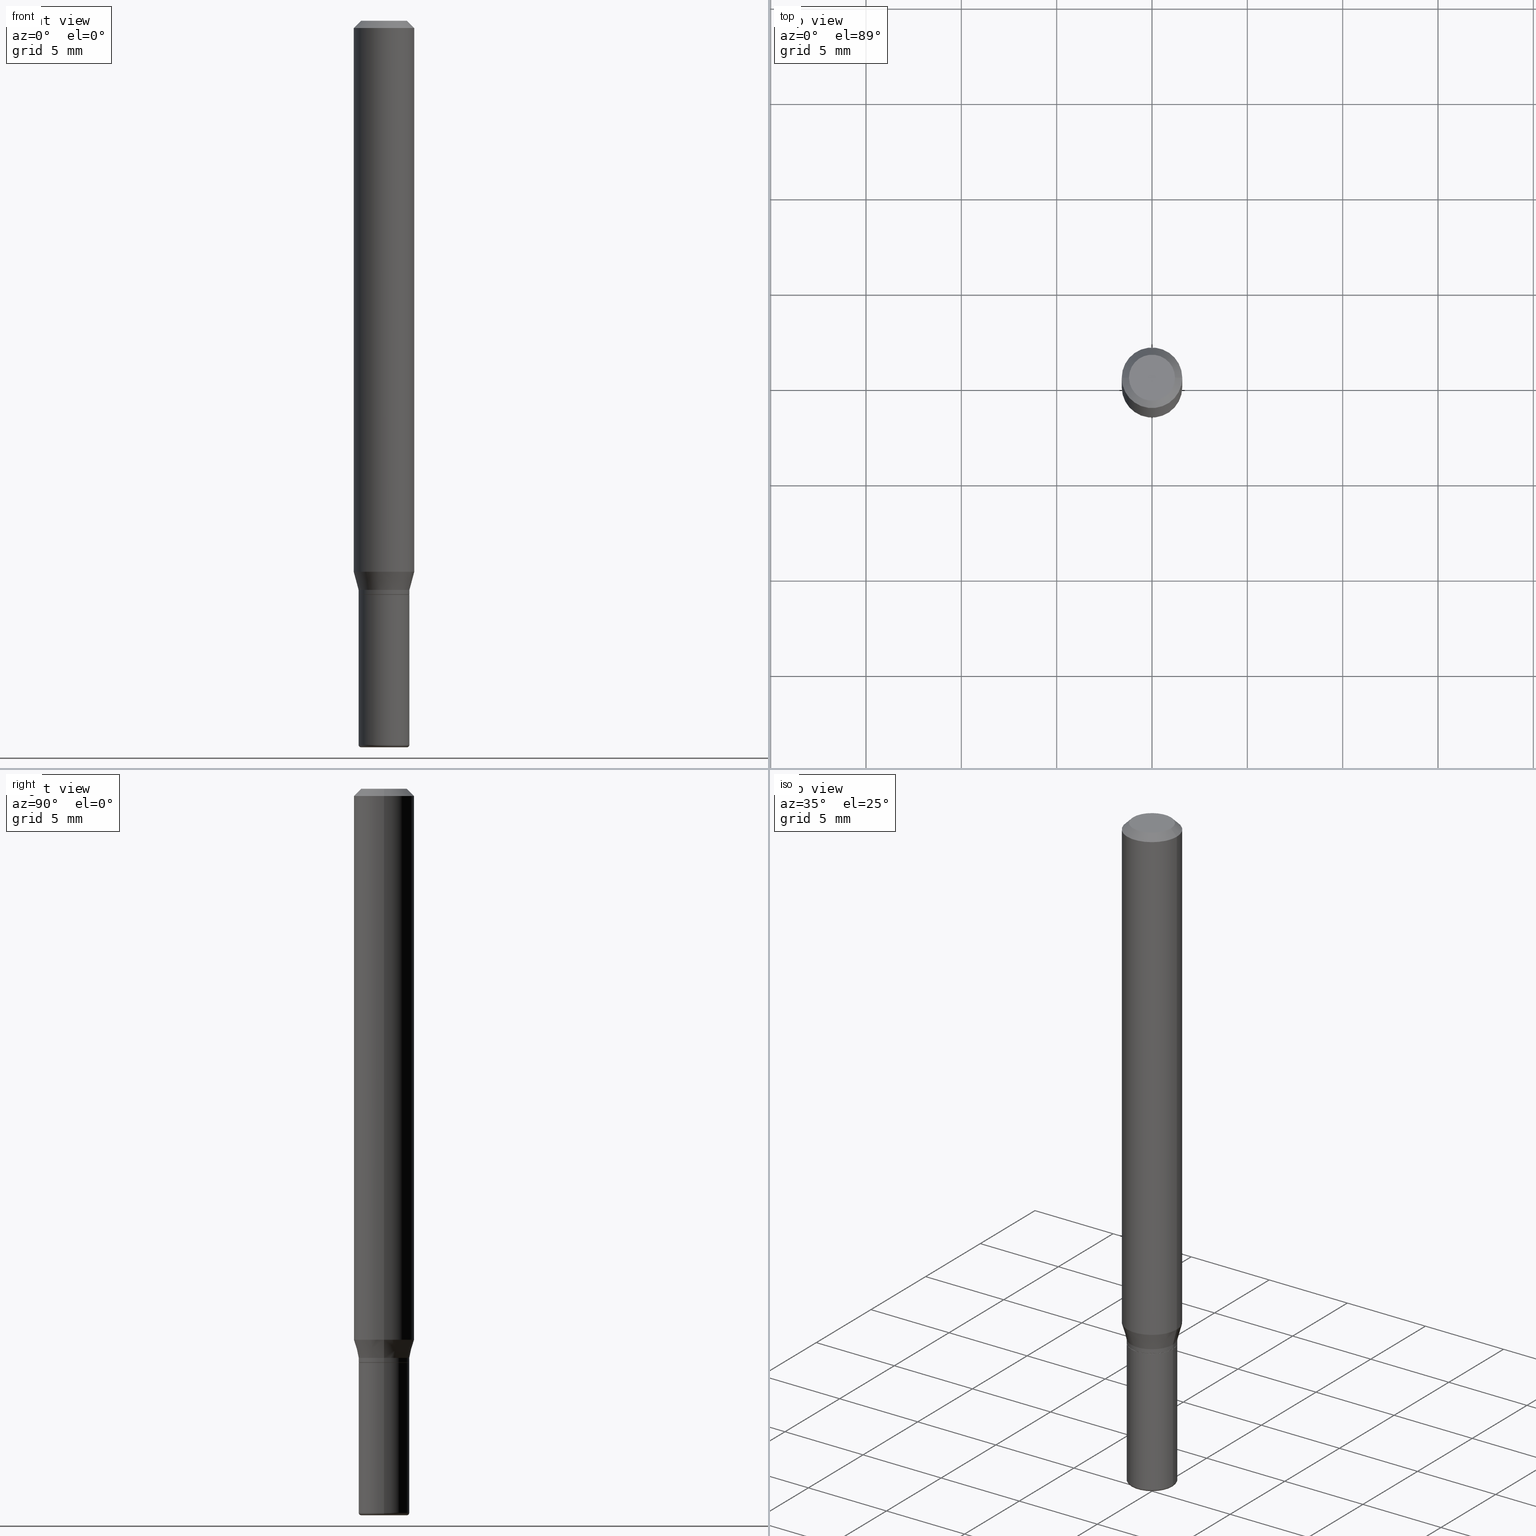
[diagram: canonical four-view strip — front | top / right | iso, engineering-drawing reading convention]
A machine part, canonical four-view strip (front | top / right | iso — engineering-drawing reading convention). The complete STEP part file that produces these views, byte-faithful:
ISO-10303-21;
HEADER;
FILE_DESCRIPTION (( 'STEP AP203' ),
    '1' );
FILE_NAME ('09227.STEP',
    '2024-02-29T23:40:52',
    ( '' ),
    ( '' ),
    'SwSTEP 2.0',
    'SolidWorks 2023',
    '' );
FILE_SCHEMA (( 'CONFIG_CONTROL_DESIGN' ));
ENDSEC;

DATA;
#1 = LOCAL_TIME ( 18, 40, 52.00000000000000000, #343 ) ;
#2 = EDGE_LOOP ( 'NONE', ( #430, #240, #84, #311 ) ) ;
#3 = VERTEX_POINT ( 'NONE', #241 ) ;
#4 = CARTESIAN_POINT ( 'NONE',  ( 0.04749999999999999362, -5.551455328760600652E-15, -1.495000000000000107 ) ) ;
#5 = ADVANCED_FACE ( 'NONE', ( #357 ), #208, .T. ) ;
#6 = EDGE_CURVE ( 'NONE', #164, #42, #386, .T. ) ;
#7 = DIRECTION ( 'NONE',  ( -6.982962677686266711E-15, -1.000000000000000000, 3.491481338843145583E-15 ) ) ;
#8 = AXIS2_PLACEMENT_3D ( 'NONE', #128, #331, #440 ) ;
#9 = AXIS2_PLACEMENT_3D ( 'NONE', #509, #155, #270 ) ;
#10 = DIRECTION ( 'NONE',  ( 0.2588190451025205729, 1.565188264969628081E-15, 0.9659258262890684232 ) ) ;
#11 = CARTESIAN_POINT ( 'NONE',  ( 3.655975865246779122E-29, -5.219764601570503141E-15, -1.495000000000000107 ) ) ;
#12 = DIRECTION ( 'NONE',  ( 1.000000000000000000, -6.982962677686266711E-15, 0.000000000000000000 ) ) ;
#13 = ORIENTED_EDGE ( 'NONE', *, *, #512, .T. ) ;
#14 = DIRECTION ( 'NONE',  ( -2.445468806185136597E-29, 3.491481338843145583E-15, 1.000000000000000000 ) ) ;
#15 = DIRECTION ( 'NONE',  ( -2.445468806185136877E-29, 3.491481338843145188E-15, 1.000000000000000000 ) ) ;
#16 = ORIENTED_EDGE ( 'NONE', *, *, #314, .T. ) ;
#17 = ADVANCED_FACE ( 'NONE', ( #477 ), #242, .F. ) ;
#18 = DIRECTION ( 'NONE',  ( -2.445468806185136877E-29, 3.491481338843145188E-15, 1.000000000000000000 ) ) ;
#19 = DIRECTION ( 'NONE',  ( 1.000000000000000000, -6.982962677686258822E-15, 0.000000000000000000 ) ) ;
#20 = AXIS2_PLACEMENT_3D ( 'NONE', #211, #367, #448 ) ;
#21 = DIRECTION ( 'NONE',  ( -2.445468806185136597E-29, 3.491481338843145583E-15, 1.000000000000000000 ) ) ;
#22 = FACE_OUTER_BOUND ( 'NONE', #199, .T. ) ;
#23 = CC_DESIGN_APPROVAL ( #151, ( #272 ) ) ;
#24 = ORIENTED_EDGE ( 'NONE', *, *, #512, .F. ) ;
#25 = FACE_OUTER_BOUND ( 'NONE', #256, .T. ) ;
#26 = FACE_OUTER_BOUND ( 'NONE', #471, .T. ) ;
#27 = EDGE_CURVE ( 'NONE', #127, #3, #114, .T. ) ;
#28 = APPROVAL_DATE_TIME ( #225, #186 ) ;
#29 = DIRECTION ( 'NONE',  ( 1.000000000000000000, -6.982962677686263555E-15, 0.000000000000000000 ) ) ;
#30 = PERSON_AND_ORGANIZATION ( #154, #291 ) ;
#31 = CIRCLE ( 'NONE', #235, 0.06250000000000000000 ) ;
#32 = PERSON_AND_ORGANIZATION ( #154, #291 ) ;
#33 = CALENDAR_DATE ( 2024, 29, 2 ) ;
#34 = AXIS2_PLACEMENT_3D ( 'NONE', #250, #216, #174 ) ;
#35 = AXIS2_PLACEMENT_3D ( 'NONE', #421, #150, #263 ) ;
#36 = CARTESIAN_POINT ( 'NONE',  ( 0.06250000000000000000, -4.364351673553916694E-16, 3.047610484872459871E-30 ) ) ;
#37 = CARTESIAN_POINT ( 'NONE',  ( 0.05200000000000008782, -4.500519445768814483E-15, -1.185000000000000053 ) ) ;
#38 = FACE_OUTER_BOUND ( 'NONE', #238, .T. ) ;
#39 = ORIENTED_EDGE ( 'NONE', *, *, #198, .T. ) ;
#40 = DIRECTION ( 'NONE',  ( -1.000000000000000000, 6.982962677686265922E-15, -4.876176775795935793E-29 ) ) ;
#41 = ORIENTED_EDGE ( 'NONE', *, *, #6, .T. ) ;
#42 = VERTEX_POINT ( 'NONE', #236 ) ;
#43 = VECTOR ( 'NONE', #222, 39.37007874015748143 ) ;
#44 = PRODUCT_DEFINITION_FORMATION_WITH_SPECIFIED_SOURCE ( 'ANY', '', #230, .NOT_KNOWN. ) ;
#45 = APPLICATION_CONTEXT ( 'configuration controlled 3d designs of mechanical parts and assemblies' ) ;
#46 = ORIENTED_EDGE ( 'NONE', *, *, #333, .F. ) ;
#47 = EDGE_CURVE ( 'NONE', #286, #124, #395, .T. ) ;
#48 = ADVANCED_BREP_SHAPE_REPRESENTATION ( '09227', ( #107, #96, #35 ), #259 ) ;
#49 = VERTEX_POINT ( 'NONE', #369 ) ;
#50 = CIRCLE ( 'NONE', #327, 0.005000000000000177046 ) ;
#51 = CARTESIAN_POINT ( 'NONE',  ( 0.06250000000000000000, -4.811533449433669144E-16, -0.01499999999999970281 ) ) ;
#52 = CARTESIAN_POINT ( 'NONE',  ( 0.05200000000000008782, -4.500519445768814483E-15, -1.185000000000000053 ) ) ;
#53 = DIRECTION ( 'NONE',  ( 1.000000000000000000, -6.982962677686263555E-15, 4.883557194083111780E-29 ) ) ;
#54 = CARTESIAN_POINT ( 'NONE',  ( 0.000000000000000000, 0.000000000000000000, 0.000000000000000000 ) ) ;
#55 = CARTESIAN_POINT ( 'NONE',  ( 0.04749999999999998668, -5.568912735454817265E-15, -1.500000000000000444 ) ) ;
#56 =( NAMED_UNIT ( * ) SI_UNIT ( $, .STERADIAN. ) SOLID_ANGLE_UNIT ( ) );
#57 = DIRECTION ( 'NONE',  ( -0.2588190451025205729, 5.211531920934545520E-15, 0.9659258262890684232 ) ) ;
#58 = DIRECTION ( 'NONE',  ( -1.000000000000000000, 7.105427357601061812E-15, 0.000000000000000000 ) ) ;
#59 = AXIS2_PLACEMENT_3D ( 'NONE', #481, #126, #244 ) ;
#60 = FACE_OUTER_BOUND ( 'NONE', #123, .T. ) ;
#61 = DIRECTION ( 'NONE',  ( 1.000000000000000000, -6.982962677686266711E-15, 4.876176775795936353E-29 ) ) ;
#62 = VERTEX_POINT ( 'NONE', #490 ) ;
#63 = ORIENTED_EDGE ( 'NONE', *, *, #467, .F. ) ;
#64 = CC_DESIGN_DATE_AND_TIME_ASSIGNMENT ( #153, #110, ( #354 ) ) ;
#65 = ORIENTED_EDGE ( 'NONE', *, *, #261, .F. ) ;
#66 = DIRECTION ( 'NONE',  ( -2.445468806185136597E-29, 3.491481338843145583E-15, 1.000000000000000000 ) ) ;
#67 = MECHANICAL_CONTEXT ( 'NONE', #392, 'mechanical' ) ;
#68 = VERTEX_POINT ( 'NONE', #134 ) ;
#69 = APPLICATION_PROTOCOL_DEFINITION ( 'international standard', 'config_control_design', 1994, #392 ) ;
#70 = ADVANCED_FACE ( 'NONE', ( #287 ), #400, .T. ) ;
#71 = CONICAL_SURFACE ( 'NONE', #353, 0.05200000000000008782, 0.7853981633975507526 ) ;
#72 = CARTESIAN_POINT ( 'NONE',  ( 2.897880535329386822E-29, -4.137405386529127541E-15, -1.185000000000000053 ) ) ;
#73 = APPROVAL_ROLE ( '' ) ;
#74 = DATE_TIME_ROLE ( 'creation_date' ) ;
#75 = DIRECTION ( 'NONE',  ( -0.7071067811865479058, 2.468850131082261005E-15, -0.7071067811865471286 ) ) ;
#76 = CARTESIAN_POINT ( 'NONE',  ( 0.05250000000000007438, -4.469096113719226630E-15, -1.175000000000000488 ) ) ;
#77 = AXIS2_PLACEMENT_3D ( 'NONE', #441, #407, #12 ) ;
#78 = EDGE_LOOP ( 'NONE', ( #117, #204, #209, #470 ) ) ;
#79 = ORIENTED_EDGE ( 'NONE', *, *, #143, .T. ) ;
#80 = DIRECTION ( 'NONE',  ( 1.000000000000000000, -6.982962677686274599E-15, 0.000000000000000000 ) ) ;
#81 = EDGE_LOOP ( 'NONE', ( #474, #197, #41, #63 ) ) ;
#82 = ORIENTED_EDGE ( 'NONE', *, *, #148, .T. ) ;
#83 = EDGE_CURVE ( 'NONE', #286, #62, #462, .T. ) ;
#84 = ORIENTED_EDGE ( 'NONE', *, *, #449, .T. ) ;
#85 = CARTESIAN_POINT ( 'NONE',  ( 3.668203209277632395E-31, -5.237222008264614861E-17, -0.01499999999999970281 ) ) ;
#86 = EDGE_CURVE ( 'NONE', #42, #352, #371, .T. ) ;
#87 = CARTESIAN_POINT ( 'NONE',  ( 2.896657800926294581E-29, -4.135659645859706826E-15, -1.184500000000000108 ) ) ;
#88 = DIRECTION ( 'NONE',  ( -2.445468806185136597E-29, 3.491481338843145583E-15, 1.000000000000000000 ) ) ;
#89 = EDGE_LOOP ( 'NONE', ( #432, #16, #277, #398 ) ) ;
#90 = CONICAL_SURFACE ( 'NONE', #463, 0.05250000000000007438, 0.2617993877991492413 ) ;
#91 = APPROVAL_PERSON_ORGANIZATION ( #152, #151, #111 ) ;
#92 = DIRECTION ( 'NONE',  ( -0.7071067811866199593, 7.493145998870616062E-15, 0.7071067811864750752 ) ) ;
#93 = CARTESIAN_POINT ( 'NONE',  ( 0.05250000000000008826, -3.666055405785296038E-16, 2.559992807292870916E-30 ) ) ;
#94 = ORIENTED_EDGE ( 'NONE', *, *, #148, .F. ) ;
#95 = CARTESIAN_POINT ( 'NONE',  ( 2.896657800926294581E-29, -4.135659645859706826E-15, -1.184500000000000108 ) ) ;
#96 = MANIFOLD_SOLID_BREP ( 'Body-Move/Copy2[2]', #303 ) ;
#97 = DIRECTION ( 'NONE',  ( 1.000000000000000000, -6.982962677686258033E-15, 0.000000000000000000 ) ) ;
#98 = DIRECTION ( 'NONE',  ( 0.7071067811865479058, -7.319954787623257623E-15, -0.7071067811865471286 ) ) ;
#99 = CC_DESIGN_PERSON_AND_ORGANIZATION_ASSIGNMENT ( #30, #269, ( #230 ) ) ;
#100 = LINE ( 'NONE', #332, #443 ) ;
#101 = CIRCLE ( 'NONE', #393, 0.04750000000000000749 ) ;
#102 = TOROIDAL_SURFACE ( 'NONE', #137, 0.04749999999999999362, 0.005000000000000177046 ) ;
#103 = UNCERTAINTY_MEASURE_WITH_UNIT (LENGTH_MEASURE( 1.000000000000000082E-05 ), #254, 'distance_accuracy_value', 'NONE');
#104 = CARTESIAN_POINT ( 'NONE',  ( 2.897880535329386822E-29, -4.137405386529127541E-15, -1.185000000000000053 ) ) ;
#105 = COORDINATED_UNIVERSAL_TIME_OFFSET ( 5, 0, .BEHIND. ) ;
#106 = CC_DESIGN_PERSON_AND_ORGANIZATION_ASSIGNMENT ( #300, #460, ( #354 ) ) ;
#107 = MANIFOLD_SOLID_BREP ( 'Body-Move/Copy2[1]', #136 ) ;
#108 = DATE_AND_TIME ( #33, #169 ) ;
#109 = DIRECTION ( 'NONE',  ( 7.105427357601001859E-15, 1.000000000000000000, -3.491481338843145583E-15 ) ) ;
#110 = DATE_TIME_ROLE ( 'classification_date' ) ;
#111 = APPROVAL_ROLE ( '' ) ;
#112 = CARTESIAN_POINT ( 'NONE',  ( 0.04750000000000000749, -4.035134999187568762E-16, 2.731847993664288856E-16 ) ) ;
#113 = CARTESIAN_POINT ( 'NONE',  ( -0.06250000000000000000, -3.528097505788223835E-15, -1.137679491924311836 ) ) ;
#114 = LINE ( 'NONE', #427, #505 ) ;
#115 = CARTESIAN_POINT ( 'NONE',  ( -0.05250000000000007438, -3.729455636866644935E-15, -1.175000000000000488 ) ) ;
#116 = AXIS2_PLACEMENT_3D ( 'NONE', #285, #406, #144 ) ;
#117 = ORIENTED_EDGE ( 'NONE', *, *, #198, .F. ) ;
#118 = AXIS2_PLACEMENT_3D ( 'NONE', #206, #66, #388 ) ;
#119 = ORIENTED_EDGE ( 'NONE', *, *, #348, .T. ) ;
#120 = ORIENTED_EDGE ( 'NONE', *, *, #307, .T. ) ;
#121 = CARTESIAN_POINT ( 'NONE',  ( -6.680649051745406845E-45, 9.538196290434862081E-31, 2.731847993664263218E-16 ) ) ;
#122 = ORIENTED_EDGE ( 'NONE', *, *, #482, .F. ) ;
#123 = EDGE_LOOP ( 'NONE', ( #24, #351, #397, #321 ) ) ;
#124 = VERTEX_POINT ( 'NONE', #414 ) ;
#125 = VECTOR ( 'NONE', #160, 39.37007874015748143 ) ;
#126 = DIRECTION ( 'NONE',  ( -2.445468806185136597E-29, 3.491481338843145583E-15, 1.000000000000000000 ) ) ;
#127 = VERTEX_POINT ( 'NONE', #284 ) ;
#128 = CARTESIAN_POINT ( 'NONE',  ( 3.668203209277706016E-29, -5.237222008264719754E-15, -1.500000000000000444 ) ) ;
#129 = LENGTH_MEASURE_WITH_UNIT ( LENGTH_MEASURE( 0.02539999999999999897 ), #145 );
#130 = ORIENTED_EDGE ( 'NONE', *, *, #465, .T. ) ;
#131 = EDGE_CURVE ( 'NONE', #124, #309, #279, .T. ) ;
#132 = EDGE_CURVE ( 'NONE', #62, #309, #361, .T. ) ;
#133 = CARTESIAN_POINT ( 'NONE',  ( 2.873425847267536398E-29, -4.102490573140697470E-15, -1.175000000000000488 ) ) ;
#134 = CARTESIAN_POINT ( 'NONE',  ( -0.05250000000000007438, -3.628776571327434780E-15, -1.175000000000000488 ) ) ;
#135 = ORIENTED_EDGE ( 'NONE', *, *, #334, .T. ) ;
#136 = CLOSED_SHELL ( 'NONE', ( #193, #475, #426, #431, #508, #390 ) ) ;
#137 = AXIS2_PLACEMENT_3D ( 'NONE', #416, #320, #288 ) ;
#138 = DIRECTION ( 'NONE',  ( 1.000000000000000000, -6.982962677686265133E-15, 0.000000000000000000 ) ) ;
#139 = DIRECTION ( 'NONE',  ( 1.000000000000000000, -6.982962677686266711E-15, 4.876176775795935793E-29 ) ) ;
#140 = EDGE_LOOP ( 'NONE', ( #65, #39, #447, #172 ) ) ;
#141 = DIRECTION ( 'NONE',  ( 2.438088387897960049E-29, -3.491481338843145188E-15, -1.000000000000000000 ) ) ;
#142 = DIRECTION ( 'NONE',  ( -2.445468806185136597E-29, 3.491481338843145583E-15, 1.000000000000000000 ) ) ;
#143 = EDGE_CURVE ( 'NONE', #409, #310, #315, .T. ) ;
#144 = DIRECTION ( 'NONE',  ( 1.000000000000000000, -6.982962677686274599E-15, 0.000000000000000000 ) ) ;
#145 =( LENGTH_UNIT ( ) NAMED_UNIT ( * ) SI_UNIT ( $, .METRE. ) );
#146 = ORIENTED_EDGE ( 'NONE', *, *, #333, .T. ) ;
#147 = ORIENTED_EDGE ( 'NONE', *, *, #334, .F. ) ;
#148 = EDGE_CURVE ( 'NONE', #309, #124, #405, .T. ) ;
#149 = DIRECTION ( 'NONE',  ( -2.438088387897960049E-29, 3.491481338843145188E-15, 1.000000000000000000 ) ) ;
#150 = DIRECTION ( 'NONE',  ( 0.000000000000000000, 0.000000000000000000, 1.000000000000000000 ) ) ;
#151 = APPROVAL ( #510, 'UNSPECIFIED' ) ;
#152 = PERSON_AND_ORGANIZATION ( #154, #291 ) ;
#153 = DATE_AND_TIME ( #422, #1 ) ;
#154 = PERSON ( 'UNSPECIFIED', 'UNSPECIFIED', 'UNSPECIFIED', ('UNSPECIFIED'), ('UNSPECIFIED'), ('UNSPECIFIED') ) ;
#155 = DIRECTION ( 'NONE',  ( -2.445468806185136597E-29, 3.491481338843145583E-15, 1.000000000000000000 ) ) ;
#156 = DIRECTION ( 'NONE',  ( 1.000000000000000000, -6.982962677686266711E-15, 4.852736867747365086E-29 ) ) ;
#157 = EDGE_CURVE ( 'NONE', #127, #358, #101, .T. ) ;
#158 = CC_DESIGN_DATE_AND_TIME_ASSIGNMENT ( #380, #74, ( #272 ) ) ;
#159 = CARTESIAN_POINT ( 'NONE',  ( 0.05250000000000008132, -3.666055405785295545E-16, 2.559992807292870215E-30 ) ) ;
#160 = DIRECTION ( 'NONE',  ( -2.445468806185136877E-29, 3.491481338843145188E-15, 1.000000000000000000 ) ) ;
#161 = ORIENTED_EDGE ( 'NONE', *, *, #465, .F. ) ;
#162 = AXIS2_PLACEMENT_3D ( 'NONE', #366, #362, #19 ) ;
#163 = EDGE_CURVE ( 'NONE', #306, #164, #167, .T. ) ;
#164 = VERTEX_POINT ( 'NONE', #55 ) ;
#165 = ORIENTED_EDGE ( 'NONE', *, *, #374, .T. ) ;
#166 = DIRECTION ( 'NONE',  ( -2.438088387897960049E-29, 3.491481338843145188E-15, 1.000000000000000000 ) ) ;
#167 = CIRCLE ( 'NONE', #8, 0.04749999999999998668 ) ;
#168 = VECTOR ( 'NONE', #98, 39.37007874015748143 ) ;
#169 = LOCAL_TIME ( 18, 40, 52.00000000000000000, #105 ) ;
#170 =( NAMED_UNIT ( * ) PLANE_ANGLE_UNIT ( ) SI_UNIT ( $, .RADIAN. ) );
#171 = CC_DESIGN_PERSON_AND_ORGANIZATION_ASSIGNMENT ( #389, #302, ( #272 ) ) ;
#172 = ORIENTED_EDGE ( 'NONE', *, *, #27, .F. ) ;
#173 = CARTESIAN_POINT ( 'NONE',  ( 3.655975865246779122E-29, -5.219764601570503141E-15, -1.495000000000000107 ) ) ;
#174 = DIRECTION ( 'NONE',  ( 1.000000000000000000, -6.982962677686263555E-15, 0.000000000000000000 ) ) ;
#175 = CARTESIAN_POINT ( 'NONE',  ( 2.897880535329386822E-29, -4.137405386529127541E-15, -1.185000000000000053 ) ) ;
#176 = AXIS2_PLACEMENT_3D ( 'NONE', #85, #444, #500 ) ;
#177 = CC_DESIGN_PERSON_AND_ORGANIZATION_ASSIGNMENT ( #341, #384, ( #44 ) ) ;
#178 = APPROVAL_PERSON_ORGANIZATION ( #32, #186, #189 ) ;
#179 = DIRECTION ( 'NONE',  ( 1.000000000000000000, -6.982962677686266711E-15, 4.852736867747365086E-29 ) ) ;
#180 = CYLINDRICAL_SURFACE ( 'NONE', #308, 0.05250000000000008826 ) ;
#181 = ORIENTED_EDGE ( 'NONE', *, *, #234, .F. ) ;
#182 = FACE_OUTER_BOUND ( 'NONE', #297, .T. ) ;
#183 = DIRECTION ( 'NONE',  ( -2.445468806185136597E-29, 3.491481338843145583E-15, 1.000000000000000000 ) ) ;
#184 = EDGE_LOOP ( 'NONE', ( #146, #476, #296, #515 ) ) ;
#185 = APPROVAL_STATUS ( 'not_yet_approved' ) ;
#186 = APPROVAL ( #262, 'UNSPECIFIED' ) ;
#187 = DIRECTION ( 'NONE',  ( -2.445468806185136877E-29, 3.491481338843145188E-15, 1.000000000000000000 ) ) ;
#188 = CIRCLE ( 'NONE', #200, 0.05250000000000007438 ) ;
#189 = APPROVAL_ROLE ( '' ) ;
#190 = FACE_OUTER_BOUND ( 'NONE', #339, .T. ) ;
#191 = COORDINATED_UNIVERSAL_TIME_OFFSET ( 5, 0, .BEHIND. ) ;
#192 = CALENDAR_DATE ( 2024, 29, 2 ) ;
#193 = ADVANCED_FACE ( 'NONE', ( #365 ), #473, .T. ) ;
#194 = CIRCLE ( 'NONE', #479, 0.05200000000000008782 ) ;
#195 = DIRECTION ( 'NONE',  ( -2.445468806185136597E-29, 3.491481338843145583E-15, 1.000000000000000000 ) ) ;
#196 = DIRECTION ( 'NONE',  ( 0.7071067811866199593, -2.468850131083015945E-15, 0.7071067811864750752 ) ) ;
#197 = ORIENTED_EDGE ( 'NONE', *, *, #163, .T. ) ;
#198 = EDGE_CURVE ( 'NONE', #358, #381, #249, .T. ) ;
#199 = EDGE_LOOP ( 'NONE', ( #377, #502, #122, #488 ) ) ;
#200 = AXIS2_PLACEMENT_3D ( 'NONE', #252, #195, #457 ) ;
#201 = DIRECTION ( 'NONE',  ( -2.445468806185136597E-29, 3.491481338843145583E-15, 1.000000000000000000 ) ) ;
#202 = DIRECTION ( 'NONE',  ( -1.000000000000000000, 6.982962677686266711E-15, 0.000000000000000000 ) ) ;
#203 = CARTESIAN_POINT ( 'NONE',  ( -0.04749999999999998668, -4.873221937037561039E-15, -1.500000000000000444 ) ) ;
#204 = ORIENTED_EDGE ( 'NONE', *, *, #157, .F. ) ;
#205 = EDGE_CURVE ( 'NONE', #352, #409, #215, .T. ) ;
#206 = CARTESIAN_POINT ( 'NONE',  ( 2.782159708937459794E-29, -3.972186715638285663E-15, -1.137679491924311836 ) ) ;
#207 = LINE ( 'NONE', #93, #401 ) ;
#208 = CONICAL_SURFACE ( 'NONE', #478, 0.06250000000000000000, 0.7853981633974488341 ) ;
#209 = ORIENTED_EDGE ( 'NONE', *, *, #27, .T. ) ;
#210 = CIRCLE ( 'NONE', #20, 0.05250000000000007438 ) ;
#211 = CARTESIAN_POINT ( 'NONE',  ( 2.873425847267536398E-29, -4.102490573140697470E-15, -1.175000000000000488 ) ) ;
#212 = CARTESIAN_POINT ( 'NONE',  ( 0.000000000000000000, 0.000000000000000000, 0.000000000000000000 ) ) ;
#213 = CARTESIAN_POINT ( 'NONE',  ( -0.05200000000000008782, -3.767923163933875116E-15, -1.185000000000000053 ) ) ;
#214 = DIRECTION ( 'NONE',  ( -2.445468806185136597E-29, 3.491481338843145583E-15, 1.000000000000000000 ) ) ;
#215 = LINE ( 'NONE', #368, #246 ) ;
#216 = DIRECTION ( 'NONE',  ( -2.445468806185136597E-29, 3.491481338843145583E-15, 1.000000000000000000 ) ) ;
#217 = EDGE_LOOP ( 'NONE', ( #239, #119, #46, #350 ) ) ;
#218 = DIRECTION ( 'NONE',  ( 1.000000000000000000, -6.982962677686263555E-15, 0.000000000000000000 ) ) ;
#219 = CARTESIAN_POINT ( 'NONE',  ( 3.666055405785579535E-16, 0.05249999999999585554, -1.185000000000000275 ) ) ;
#220 = CONICAL_SURFACE ( 'NONE', #455, 0.05200000000000008782, 0.7853981633975507526 ) ;
#221 = CARTESIAN_POINT ( 'NONE',  ( 0.000000000000000000, 0.000000000000000000, 0.000000000000000000 ) ) ;
#222 = DIRECTION ( 'NONE',  ( -2.445468806185136877E-29, 3.491481338843145188E-15, 1.000000000000000000 ) ) ;
#223 = ORIENTED_EDGE ( 'NONE', *, *, #47, .T. ) ;
#224 = DIRECTION ( 'NONE',  ( -2.445468806185136597E-29, 3.491481338843145583E-15, 1.000000000000000000 ) ) ;
#225 = DATE_AND_TIME ( #419, #446 ) ;
#226 = EDGE_LOOP ( 'NONE', ( #271, #82, #165, #147 ) ) ;
#227 = CARTESIAN_POINT ( 'NONE',  ( -0.05250000000000017153, -4.305550057775760834E-15, -1.495000000000000107 ) ) ;
#228 = ADVANCED_FACE ( 'NONE', ( #60 ), #324, .T. ) ;
#229 = APPROVAL_DATE_TIME ( #108, #151 ) ;
#230 = PRODUCT ( '09227', '09227', '', ( #67 ) ) ;
#231 = CC_DESIGN_APPROVAL ( #186, ( #44 ) ) ;
#232 = COORDINATED_UNIVERSAL_TIME_OFFSET ( 5, 0, .BEHIND. ) ;
#233 = ADVANCED_FACE ( 'NONE', ( #26 ), #316, .T. ) ;
#234 = EDGE_CURVE ( 'NONE', #251, #49, #436, .T. ) ;
#235 = AXIS2_PLACEMENT_3D ( 'NONE', #503, #305, #298 ) ;
#236 = CARTESIAN_POINT ( 'NONE',  ( 0.05250000000000017153, -5.586370142149033090E-15, -1.495000000000000107 ) ) ;
#237 = CARTESIAN_POINT ( 'NONE',  ( -0.05249999999999999806, -4.305550057775762412E-15, -1.185000000000000053 ) ) ;
#238 = EDGE_LOOP ( 'NONE', ( #504, #437 ) ) ;
#239 = ORIENTED_EDGE ( 'NONE', *, *, #131, .T. ) ;
#240 = ORIENTED_EDGE ( 'NONE', *, *, #467, .T. ) ;
#241 = CARTESIAN_POINT ( 'NONE',  ( -0.06250000000000000000, -1.568190258010403558E-15, -0.01499999999999970281 ) ) ;
#242 = PLANE ( 'NONE',  #423 ) ;
#243 = LINE ( 'NONE', #489, #424 ) ;
#244 = DIRECTION ( 'NONE',  ( 1.000000000000000000, -6.982962677686266711E-15, 4.876176775795935793E-29 ) ) ;
#245 = CARTESIAN_POINT ( 'NONE',  ( -0.06250000000000000000, 4.440892098500626162E-16, -3.074334431409316114E-30 ) ) ;
#246 = VECTOR ( 'NONE', #18, 39.37007874015748143 ) ;
#247 = AXIS2_PLACEMENT_3D ( 'NONE', #496, #183, #139 ) ;
#248 = ADVANCED_FACE ( 'NONE', ( #190 ), #220, .T. ) ;
#249 = LINE ( 'NONE', #51, #168 ) ;
#250 = CARTESIAN_POINT ( 'NONE',  ( 3.655975865246779122E-29, -5.219764601570503141E-15, -1.495000000000000107 ) ) ;
#251 = VERTEX_POINT ( 'NONE', #113 ) ;
#252 = CARTESIAN_POINT ( 'NONE',  ( 2.873425847267536398E-29, -4.102490573140697470E-15, -1.175000000000000488 ) ) ;
#253 = DIRECTION ( 'NONE',  ( -2.445468806185136597E-29, 3.491481338843145583E-15, 1.000000000000000000 ) ) ;
#254 =( CONVERSION_BASED_UNIT ( 'INCH', #129 ) LENGTH_UNIT ( ) NAMED_UNIT ( #342 ) );
#255 = PLANE ( 'NONE',  #304 ) ;
#256 = EDGE_LOOP ( 'NONE', ( #276, #484 ) ) ;
#257 = AXIS2_PLACEMENT_3D ( 'NONE', #95, #322, #486 ) ;
#258 = CIRCLE ( 'NONE', #9, 0.06250000000000000000 ) ;
#259 =( GEOMETRIC_REPRESENTATION_CONTEXT ( 3 ) GLOBAL_UNCERTAINTY_ASSIGNED_CONTEXT ( ( #103 ) ) GLOBAL_UNIT_ASSIGNED_CONTEXT ( ( #254, #170, #56 ) ) REPRESENTATION_CONTEXT ( 'NONE', 'WORKASPACE' ) );
#260 = EDGE_LOOP ( 'NONE', ( #442, #130, #223, #94 ) ) ;
#261 = EDGE_CURVE ( 'NONE', #358, #127, #360, .T. ) ;
#262 = APPROVAL_STATUS ( 'not_yet_approved' ) ;
#263 = DIRECTION ( 'NONE',  ( 1.000000000000000000, 0.000000000000000000, 0.000000000000000000 ) ) ;
#264 = VECTOR ( 'NONE', #196, 39.37007874015748143 ) ;
#265 = CIRCLE ( 'NONE', #77, 0.06250000000000000000 ) ;
#266 = CC_DESIGN_APPROVAL ( #483, ( #354 ) ) ;
#267 = PERSON_AND_ORGANIZATION ( #154, #291 ) ;
#268 = EDGE_CURVE ( 'NONE', #49, #381, #434, .T. ) ;
#269 = PERSON_AND_ORGANIZATION_ROLE ( 'design_owner' ) ;
#270 = DIRECTION ( 'NONE',  ( 1.000000000000000000, -6.982962677686266711E-15, 0.000000000000000000 ) ) ;
#271 = ORIENTED_EDGE ( 'NONE', *, *, #348, .F. ) ;
#272 = PRODUCT_DEFINITION ( 'UNKNOWN', '', #44, #383 ) ;
#273 = AXIS2_PLACEMENT_3D ( 'NONE', #173, #293, #218 ) ;
#274 = CIRCLE ( 'NONE', #162, 0.05249999999999999806 ) ;
#275 = EDGE_LOOP ( 'NONE', ( #435, #135, #120, #181 ) ) ;
#276 = ORIENTED_EDGE ( 'NONE', *, *, #379, .F. ) ;
#277 = ORIENTED_EDGE ( 'NONE', *, *, #86, .F. ) ;
#278 = FACE_OUTER_BOUND ( 'NONE', #2, .T. ) ;
#279 = CIRCLE ( 'NONE', #345, 0.05250000000000008826 ) ;
#280 = DIRECTION ( 'NONE',  ( 2.445468806185136597E-29, -3.491481338843145583E-15, -1.000000000000000000 ) ) ;
#281 = ADVANCED_FACE ( 'NONE', ( #330 ), #359, .T. ) ;
#282 = AXIS2_PLACEMENT_3D ( 'NONE', #221, #495, #375 ) ;
#283 = CARTESIAN_POINT ( 'NONE',  ( 0.05249999999999999806, -4.504010927107656701E-15, -1.185000000000000053 ) ) ;
#284 = CARTESIAN_POINT ( 'NONE',  ( -0.04750000000000000749, 3.578768372314221353E-16, 2.731847993664239060E-16 ) ) ;
#285 = CARTESIAN_POINT ( 'NONE',  ( 2.897880535329386822E-29, -4.137405386529127541E-15, -1.185000000000000053 ) ) ;
#286 = VERTEX_POINT ( 'NONE', #52 ) ;
#287 = FACE_OUTER_BOUND ( 'NONE', #78, .T. ) ;
#288 = DIRECTION ( 'NONE',  ( 1.000000000000000000, -6.982962677686263555E-15, 4.883557194083111780E-29 ) ) ;
#289 = ORIENTED_EDGE ( 'NONE', *, *, #83, .F. ) ;
#290 = AXIS2_PLACEMENT_3D ( 'NONE', #121, #514, #156 ) ;
#291 = ORGANIZATION ( 'UNSPECIFIED', 'UNSPECIFIED', '' ) ;
#292 = ADVANCED_FACE ( 'NONE', ( #410 ), #90, .T. ) ;
#293 = DIRECTION ( 'NONE',  ( -2.445468806185136597E-29, 3.491481338843145583E-15, 1.000000000000000000 ) ) ;
#294 = CYLINDRICAL_SURFACE ( 'NONE', #494, 0.05250000000000008826 ) ;
#295 = DIRECTION ( 'NONE',  ( 1.000000000000000000, -6.982962677686258822E-15, 0.000000000000000000 ) ) ;
#296 = ORIENTED_EDGE ( 'NONE', *, *, #356, .F. ) ;
#297 = EDGE_LOOP ( 'NONE', ( #326, #79 ) ) ;
#298 = DIRECTION ( 'NONE',  ( 1.000000000000000000, -6.982962677686270655E-15, 0.000000000000000000 ) ) ;
#299 = CIRCLE ( 'NONE', #34, 0.05250000000000017153 ) ;
#300 = PERSON_AND_ORGANIZATION ( #154, #291 ) ;
#301 = SECURITY_CLASSIFICATION_LEVEL ( 'unclassified' ) ;
#302 = PERSON_AND_ORGANIZATION_ROLE ( 'creator' ) ;
#303 = CLOSED_SHELL ( 'NONE', ( #281, #248, #5, #233, #292, #312, #228, #70, #420, #17, #492, #516 ) ) ;
#304 = AXIS2_PLACEMENT_3D ( 'NONE', #219, #373, #40 ) ;
#305 = DIRECTION ( 'NONE',  ( -2.445468806185136597E-29, 3.491481338843145583E-15, 1.000000000000000000 ) ) ;
#306 = VERTEX_POINT ( 'NONE', #203 ) ;
#307 = EDGE_CURVE ( 'NONE', #404, #49, #243, .T. ) ;
#308 = AXIS2_PLACEMENT_3D ( 'NONE', #335, #214, #61 ) ;
#309 = VERTEX_POINT ( 'NONE', #480 ) ;
#310 = VERTEX_POINT ( 'NONE', #283 ) ;
#311 = ORIENTED_EDGE ( 'NONE', *, *, #143, .F. ) ;
#312 = ADVANCED_FACE ( 'NONE', ( #438 ), #429, .T. ) ;
#313 = DIRECTION ( 'NONE',  ( 1.000000000000000000, -6.982962677686280121E-15, 0.000000000000000000 ) ) ;
#314 = EDGE_CURVE ( 'NONE', #306, #352, #50, .T. ) ;
#315 = CIRCLE ( 'NONE', #417, 0.05249999999999999806 ) ;
#316 = CYLINDRICAL_SURFACE ( 'NONE', #59, 0.06250000000000000000 ) ;
#317 = AXIS2_PLACEMENT_3D ( 'NONE', #428, #224, #29 ) ;
#318 = DIRECTION ( 'NONE',  ( -2.445468806185136597E-29, 3.491481338843145583E-15, 1.000000000000000000 ) ) ;
#319 = DIRECTION ( 'NONE',  ( -2.445468806185136597E-29, 3.491481338843145583E-15, 1.000000000000000000 ) ) ;
#320 = DIRECTION ( 'NONE',  ( -2.445468806185136597E-29, 3.491481338843145583E-15, 1.000000000000000000 ) ) ;
#321 = ORIENTED_EDGE ( 'NONE', *, *, #394, .F. ) ;
#322 = DIRECTION ( 'NONE',  ( -2.445468806185136597E-29, 3.491481338843145583E-15, 1.000000000000000000 ) ) ;
#323 = FACE_OUTER_BOUND ( 'NONE', #260, .T. ) ;
#324 = CYLINDRICAL_SURFACE ( 'NONE', #282, 0.06250000000000000000 ) ;
#325 = CYLINDRICAL_SURFACE ( 'NONE', #247, 0.05250000000000008132 ) ;
#326 = ORIENTED_EDGE ( 'NONE', *, *, #482, .T. ) ;
#327 = AXIS2_PLACEMENT_3D ( 'NONE', #458, #109, #58 ) ;
#328 = APPROVAL_PERSON_ORGANIZATION ( #267, #483, #73 ) ;
#329 = PLANE ( 'NONE',  #363 ) ;
#330 = FACE_OUTER_BOUND ( 'NONE', #217, .T. ) ;
#331 = DIRECTION ( 'NONE',  ( -2.445468806185136597E-29, 3.491481338843145583E-15, 1.000000000000000000 ) ) ;
#332 = CARTESIAN_POINT ( 'NONE',  ( -0.05250000000000008132, 3.730349362740531754E-16, -2.582440922383829865E-30 ) ) ;
#333 = EDGE_CURVE ( 'NONE', #404, #68, #210, .T. ) ;
#334 = EDGE_CURVE ( 'NONE', #68, #404, #188, .T. ) ;
#335 = CARTESIAN_POINT ( 'NONE',  ( 0.000000000000000000, 0.000000000000000000, 0.000000000000000000 ) ) ;
#336 = APPROVAL_DATE_TIME ( #344, #483 ) ;
#337 = VECTOR ( 'NONE', #92, 39.37007874015748143 ) ;
#338 = AXIS2_PLACEMENT_3D ( 'NONE', #133, #318, #485 ) ;
#339 = EDGE_LOOP ( 'NONE', ( #439, #498, #466, #433 ) ) ;
#340 = PLANE ( 'NONE',  #387 ) ;
#341 = PERSON_AND_ORGANIZATION ( #154, #291 ) ;
#342 = DIMENSIONAL_EXPONENTS ( 1.000000000000000000, 0.000000000000000000, 0.000000000000000000, 0.000000000000000000, 0.000000000000000000, 0.000000000000000000, 0.000000000000000000 ) ;
#343 = COORDINATED_UNIVERSAL_TIME_OFFSET ( 5, 0, .BEHIND. ) ;
#344 = DATE_AND_TIME ( #391, #408 ) ;
#345 = AXIS2_PLACEMENT_3D ( 'NONE', #87, #319, #138 ) ;
#346 = VECTOR ( 'NONE', #382, 39.37007874015748143 ) ;
#347 = CARTESIAN_POINT ( 'NONE',  ( 0.06250000000000000000, -4.888073874380378612E-16, -0.01499999999999970281 ) ) ;
#348 = EDGE_CURVE ( 'NONE', #309, #68, #100, .T. ) ;
#349 = ORIENTED_EDGE ( 'NONE', *, *, #356, .T. ) ;
#350 = ORIENTED_EDGE ( 'NONE', *, *, #374, .F. ) ;
#351 = ORIENTED_EDGE ( 'NONE', *, *, #234, .T. ) ;
#352 = VERTEX_POINT ( 'NONE', #227 ) ;
#353 = AXIS2_PLACEMENT_3D ( 'NONE', #175, #501, #491 ) ;
#354 = SECURITY_CLASSIFICATION ( '', '', #301 ) ;
#355 = EDGE_LOOP ( 'NONE', ( #289, #161 ) ) ;
#356 = EDGE_CURVE ( 'NONE', #49, #251, #31, .T. ) ;
#357 = FACE_OUTER_BOUND ( 'NONE', #140, .T. ) ;
#358 = VERTEX_POINT ( 'NONE', #112 ) ;
#359 = CYLINDRICAL_SURFACE ( 'NONE', #511, 0.05250000000000008132 ) ;
#360 = CIRCLE ( 'NONE', #290, 0.04750000000000000749 ) ;
#361 = LINE ( 'NONE', #213, #337 ) ;
#362 = DIRECTION ( 'NONE',  ( -2.445468806185136597E-29, 3.491481338843145583E-15, 1.000000000000000000 ) ) ;
#363 = AXIS2_PLACEMENT_3D ( 'NONE', #499, #141, #451 ) ;
#364 = DIRECTION ( 'NONE',  ( 1.000000000000000000, -6.982962677686266711E-15, 4.876176775795935793E-29 ) ) ;
#365 = FACE_OUTER_BOUND ( 'NONE', #89, .T. ) ;
#366 = CARTESIAN_POINT ( 'NONE',  ( 2.897880535329386822E-29, -4.137405386529127541E-15, -1.185000000000000053 ) ) ;
#367 = DIRECTION ( 'NONE',  ( -2.445468806185136597E-29, 3.491481338843145583E-15, 1.000000000000000000 ) ) ;
#368 = CARTESIAN_POINT ( 'NONE',  ( -0.05250000000000008826, 3.730349362740532247E-16, -2.582440922383829865E-30 ) ) ;
#369 = CARTESIAN_POINT ( 'NONE',  ( 0.06250000000000000000, -4.408621882993678121E-15, -1.137679491924311836 ) ) ;
#370 = DIRECTION ( 'NONE',  ( -2.445468806185136597E-29, 3.491481338843145583E-15, 1.000000000000000000 ) ) ;
#371 = CIRCLE ( 'NONE', #273, 0.05250000000000017153 ) ;
#372 = AXIS2_PLACEMENT_3D ( 'NONE', #11, #411, #53 ) ;
#373 = DIRECTION ( 'NONE',  ( 2.438088387897960049E-29, -3.491481338843145188E-15, -1.000000000000000000 ) ) ;
#374 = EDGE_CURVE ( 'NONE', #124, #404, #378, .T. ) ;
#375 = DIRECTION ( 'NONE',  ( 1.000000000000000000, -6.982962677686266711E-15, 4.876176775795935793E-29 ) ) ;
#376 = FACE_OUTER_BOUND ( 'NONE', #226, .T. ) ;
#377 = ORIENTED_EDGE ( 'NONE', *, *, #86, .T. ) ;
#378 = LINE ( 'NONE', #159, #346 ) ;
#379 = EDGE_CURVE ( 'NONE', #164, #306, #507, .T. ) ;
#380 = DATE_AND_TIME ( #192, #456 ) ;
#381 = VERTEX_POINT ( 'NONE', #347 ) ;
#382 = DIRECTION ( 'NONE',  ( -2.445468806185136877E-29, 3.491481338843145188E-15, 1.000000000000000000 ) ) ;
#383 = DESIGN_CONTEXT ( 'detailed design', #45, 'design' ) ;
#384 = PERSON_AND_ORGANIZATION_ROLE ( 'design_supplier' ) ;
#385 = PRODUCT_RELATED_PRODUCT_CATEGORY ( 'detail', '', ( #230 ) ) ;
#386 = CIRCLE ( 'NONE', #493, 0.005000000000000177046 ) ;
#387 = AXIS2_PLACEMENT_3D ( 'NONE', #513, #149, #396 ) ;
#388 = DIRECTION ( 'NONE',  ( 1.000000000000000000, -6.982962677686270655E-15, 0.000000000000000000 ) ) ;
#389 = PERSON_AND_ORGANIZATION ( #154, #291 ) ;
#390 = ADVANCED_FACE ( 'NONE', ( #25 ), #340, .F. ) ;
#391 = CALENDAR_DATE ( 2024, 29, 2 ) ;
#392 = APPLICATION_CONTEXT ( 'configuration controlled 3d designs of mechanical parts and assemblies' ) ;
#393 = AXIS2_PLACEMENT_3D ( 'NONE', #453, #253, #179 ) ;
#394 = EDGE_CURVE ( 'NONE', #3, #381, #258, .T. ) ;
#395 = LINE ( 'NONE', #37, #264 ) ;
#396 = DIRECTION ( 'NONE',  ( 1.000000000000000000, -6.982962677686265922E-15, 4.876176775795935793E-29 ) ) ;
#397 = ORIENTED_EDGE ( 'NONE', *, *, #268, .T. ) ;
#398 = ORIENTED_EDGE ( 'NONE', *, *, #6, .F. ) ;
#399 = EDGE_CURVE ( 'NONE', #68, #251, #469, .T. ) ;
#400 = CONICAL_SURFACE ( 'NONE', #176, 0.06250000000000000000, 0.7853981633974488341 ) ;
#401 = VECTOR ( 'NONE', #15, 39.37007874015748143 ) ;
#402 = CARTESIAN_POINT ( 'NONE',  ( 3.668203209277632395E-31, -5.237222008264614861E-17, -0.01499999999999970281 ) ) ;
#403 = CARTESIAN_POINT ( 'NONE',  ( 2.897880535329386822E-29, -4.137405386529127541E-15, -1.185000000000000053 ) ) ;
#404 = VERTEX_POINT ( 'NONE', #76 ) ;
#405 = CIRCLE ( 'NONE', #257, 0.05250000000000008826 ) ;
#406 = DIRECTION ( 'NONE',  ( -2.445468806185136597E-29, 3.491481338843145583E-15, 1.000000000000000000 ) ) ;
#407 = DIRECTION ( 'NONE',  ( -2.445468806185136597E-29, 3.491481338843145583E-15, 1.000000000000000000 ) ) ;
#408 = LOCAL_TIME ( 18, 40, 52.00000000000000000, #425 ) ;
#409 = VERTEX_POINT ( 'NONE', #237 ) ;
#410 = FACE_OUTER_BOUND ( 'NONE', #184, .T. ) ;
#411 = DIRECTION ( 'NONE',  ( -2.445468806185136597E-29, 3.491481338843145583E-15, 1.000000000000000000 ) ) ;
#412 = LINE ( 'NONE', #245, #43 ) ;
#413 = PRODUCT_DEFINITION_SHAPE ( 'NONE', 'NONE',  #272 ) ;
#414 = CARTESIAN_POINT ( 'NONE',  ( 0.05250000000000008826, -4.502265186438236775E-15, -1.184500000000000108 ) ) ;
#415 = CC_DESIGN_PERSON_AND_ORGANIZATION_ASSIGNMENT ( #506, #461, ( #44 ) ) ;
#416 = CARTESIAN_POINT ( 'NONE',  ( 3.655975865246779122E-29, -5.219764601570503141E-15, -1.495000000000000107 ) ) ;
#417 = AXIS2_PLACEMENT_3D ( 'NONE', #450, #21, #295 ) ;
#418 = VECTOR ( 'NONE', #57, 39.37007874015748143 ) ;
#419 = CALENDAR_DATE ( 2024, 29, 2 ) ;
#420 = ADVANCED_FACE ( 'NONE', ( #38 ), #329, .F. ) ;
#421 = CARTESIAN_POINT ( 'NONE',  ( 0.000000000000000000, 0.000000000000000000, 0.000000000000000000 ) ) ;
#422 = CALENDAR_DATE ( 2024, 29, 2 ) ;
#423 = AXIS2_PLACEMENT_3D ( 'NONE', #403, #166, #468 ) ;
#424 = VECTOR ( 'NONE', #10, 39.37007874015748143 ) ;
#425 = COORDINATED_UNIVERSAL_TIME_OFFSET ( 5, 0, .BEHIND. ) ;
#426 = ADVANCED_FACE ( 'NONE', ( #182 ), #255, .F. ) ;
#427 = CARTESIAN_POINT ( 'NONE',  ( -0.06250000000000000000, 3.840629472727455270E-16, -0.01499999999999970281 ) ) ;
#428 = CARTESIAN_POINT ( 'NONE',  ( 3.668203209277706016E-29, -5.237222008264719754E-15, -1.500000000000000444 ) ) ;
#429 = CONICAL_SURFACE ( 'NONE', #338, 0.05250000000000007438, 0.2617993877991492413 ) ;
#430 = ORIENTED_EDGE ( 'NONE', *, *, #205, .F. ) ;
#431 = ADVANCED_FACE ( 'NONE', ( #278 ), #294, .T. ) ;
#432 = ORIENTED_EDGE ( 'NONE', *, *, #379, .T. ) ;
#433 = ORIENTED_EDGE ( 'NONE', *, *, #47, .F. ) ;
#434 = LINE ( 'NONE', #36, #125 ) ;
#435 = ORIENTED_EDGE ( 'NONE', *, *, #399, .F. ) ;
#436 = CIRCLE ( 'NONE', #118, 0.06250000000000000000 ) ;
#437 = ORIENTED_EDGE ( 'NONE', *, *, #261, .T. ) ;
#438 = FACE_OUTER_BOUND ( 'NONE', #275, .T. ) ;
#439 = ORIENTED_EDGE ( 'NONE', *, *, #83, .T. ) ;
#440 = DIRECTION ( 'NONE',  ( 1.000000000000000000, -6.982962677686263555E-15, 0.000000000000000000 ) ) ;
#441 = CARTESIAN_POINT ( 'NONE',  ( 3.668203209277632395E-31, -5.237222008264614861E-17, -0.01499999999999970281 ) ) ;
#442 = ORIENTED_EDGE ( 'NONE', *, *, #132, .F. ) ;
#443 = VECTOR ( 'NONE', #187, 39.37007874015748143 ) ;
#444 = DIRECTION ( 'NONE',  ( 2.445468806185136597E-29, -3.491481338843145583E-15, -1.000000000000000000 ) ) ;
#445 = DIRECTION ( 'NONE',  ( 1.000000000000000000, -6.982962677686266711E-15, 4.876176775795936353E-29 ) ) ;
#446 = LOCAL_TIME ( 18, 40, 52.00000000000000000, #191 ) ;
#447 = ORIENTED_EDGE ( 'NONE', *, *, #472, .T. ) ;
#448 = DIRECTION ( 'NONE',  ( 1.000000000000000000, -6.982962677686258033E-15, 0.000000000000000000 ) ) ;
#449 = EDGE_CURVE ( 'NONE', #42, #310, #207, .T. ) ;
#450 = CARTESIAN_POINT ( 'NONE',  ( 2.897880535329386822E-29, -4.137405386529127541E-15, -1.185000000000000053 ) ) ;
#451 = DIRECTION ( 'NONE',  ( -1.000000000000000000, 6.982962677686265922E-15, -4.876176775795935793E-29 ) ) ;
#452 = CARTESIAN_POINT ( 'NONE',  ( 2.873425847267536398E-29, -4.102490573140697470E-15, -1.175000000000000488 ) ) ;
#453 = CARTESIAN_POINT ( 'NONE',  ( -6.680649051745406845E-45, 9.538196290434862081E-31, 2.731847993664263218E-16 ) ) ;
#454 = DIRECTION ( 'NONE',  ( 1.000000000000000000, -6.982962677686274599E-15, 0.000000000000000000 ) ) ;
#455 = AXIS2_PLACEMENT_3D ( 'NONE', #72, #201, #80 ) ;
#456 = LOCAL_TIME ( 18, 40, 52.00000000000000000, #232 ) ;
#457 = DIRECTION ( 'NONE',  ( 1.000000000000000000, -6.982962677686258033E-15, 0.000000000000000000 ) ) ;
#458 = CARTESIAN_POINT ( 'NONE',  ( -0.04749999999999999362, -4.882256802084455647E-15, -1.495000000000000107 ) ) ;
#459 = SHAPE_DEFINITION_REPRESENTATION ( #413, #48 ) ;
#460 = PERSON_AND_ORGANIZATION_ROLE ( 'classification_officer' ) ;
#461 = PERSON_AND_ORGANIZATION_ROLE ( 'creator' ) ;
#462 = CIRCLE ( 'NONE', #116, 0.05200000000000008782 ) ;
#463 = AXIS2_PLACEMENT_3D ( 'NONE', #452, #14, #97 ) ;
#464 = APPLICATION_PROTOCOL_DEFINITION ( 'international standard', 'config_control_design', 1994, #45 ) ;
#465 = EDGE_CURVE ( 'NONE', #62, #286, #194, .T. ) ;
#466 = ORIENTED_EDGE ( 'NONE', *, *, #131, .F. ) ;
#467 = EDGE_CURVE ( 'NONE', #352, #42, #299, .T. ) ;
#468 = DIRECTION ( 'NONE',  ( 1.000000000000000000, -6.982962677686265922E-15, 4.876176775795935793E-29 ) ) ;
#469 = LINE ( 'NONE', #115, #418 ) ;
#470 = ORIENTED_EDGE ( 'NONE', *, *, #394, .T. ) ;
#471 = EDGE_LOOP ( 'NONE', ( #349, #13, #518, #517 ) ) ;
#472 = EDGE_CURVE ( 'NONE', #381, #3, #265, .T. ) ;
#473 = TOROIDAL_SURFACE ( 'NONE', #372, 0.04749999999999999362, 0.005000000000000177046 ) ;
#474 = ORIENTED_EDGE ( 'NONE', *, *, #314, .F. ) ;
#475 = ADVANCED_FACE ( 'NONE', ( #22 ), #180, .T. ) ;
#476 = ORIENTED_EDGE ( 'NONE', *, *, #399, .T. ) ;
#477 = FACE_OUTER_BOUND ( 'NONE', #355, .T. ) ;
#478 = AXIS2_PLACEMENT_3D ( 'NONE', #402, #280, #202 ) ;
#479 = AXIS2_PLACEMENT_3D ( 'NONE', #104, #88, #454 ) ;
#480 = CARTESIAN_POINT ( 'NONE',  ( -0.05250000000000008826, -3.762624709585653503E-15, -1.184500000000000108 ) ) ;
#481 = CARTESIAN_POINT ( 'NONE',  ( 0.000000000000000000, 0.000000000000000000, 0.000000000000000000 ) ) ;
#482 = EDGE_CURVE ( 'NONE', #310, #409, #274, .T. ) ;
#483 = APPROVAL ( #185, 'UNSPECIFIED' ) ;
#484 = ORIENTED_EDGE ( 'NONE', *, *, #163, .F. ) ;
#485 = DIRECTION ( 'NONE',  ( 1.000000000000000000, -6.982962677686258033E-15, 0.000000000000000000 ) ) ;
#486 = DIRECTION ( 'NONE',  ( 1.000000000000000000, -6.982962677686265133E-15, 0.000000000000000000 ) ) ;
#487 = FACE_OUTER_BOUND ( 'NONE', #81, .T. ) ;
#488 = ORIENTED_EDGE ( 'NONE', *, *, #449, .F. ) ;
#489 = CARTESIAN_POINT ( 'NONE',  ( 0.05250000000000007438, -4.469096113719226630E-15, -1.175000000000000488 ) ) ;
#490 = CARTESIAN_POINT ( 'NONE',  ( -0.05200000000000008782, -3.765273936759763915E-15, -1.185000000000000053 ) ) ;
#491 = DIRECTION ( 'NONE',  ( 1.000000000000000000, -6.982962677686274599E-15, 0.000000000000000000 ) ) ;
#492 = ADVANCED_FACE ( 'NONE', ( #323 ), #71, .T. ) ;
#493 = AXIS2_PLACEMENT_3D ( 'NONE', #4, #7, #313 ) ;
#494 = AXIS2_PLACEMENT_3D ( 'NONE', #54, #370, #445 ) ;
#495 = DIRECTION ( 'NONE',  ( -2.445468806185136597E-29, 3.491481338843145583E-15, 1.000000000000000000 ) ) ;
#496 = CARTESIAN_POINT ( 'NONE',  ( 0.000000000000000000, 0.000000000000000000, 0.000000000000000000 ) ) ;
#497 = CC_DESIGN_SECURITY_CLASSIFICATION ( #354, ( #44 ) ) ;
#498 = ORIENTED_EDGE ( 'NONE', *, *, #132, .T. ) ;
#499 = CARTESIAN_POINT ( 'NONE',  ( 3.316907271900976589E-16, 0.04750000000000000749, -2.925296391183627249E-17 ) ) ;
#500 = DIRECTION ( 'NONE',  ( -1.000000000000000000, 6.982962677686266711E-15, 0.000000000000000000 ) ) ;
#501 = DIRECTION ( 'NONE',  ( -2.445468806185136597E-29, 3.491481338843145583E-15, 1.000000000000000000 ) ) ;
#502 = ORIENTED_EDGE ( 'NONE', *, *, #205, .T. ) ;
#503 = CARTESIAN_POINT ( 'NONE',  ( 2.782159708937459794E-29, -3.972186715638285663E-15, -1.137679491924311836 ) ) ;
#504 = ORIENTED_EDGE ( 'NONE', *, *, #157, .T. ) ;
#505 = VECTOR ( 'NONE', #75, 39.37007874015748143 ) ;
#506 = PERSON_AND_ORGANIZATION ( #154, #291 ) ;
#507 = CIRCLE ( 'NONE', #317, 0.04749999999999998668 ) ;
#508 = ADVANCED_FACE ( 'NONE', ( #487 ), #102, .T. ) ;
#509 = CARTESIAN_POINT ( 'NONE',  ( 3.668203209277632395E-31, -5.237222008264614861E-17, -0.01499999999999970281 ) ) ;
#510 = APPROVAL_STATUS ( 'not_yet_approved' ) ;
#511 = AXIS2_PLACEMENT_3D ( 'NONE', #212, #142, #364 ) ;
#512 = EDGE_CURVE ( 'NONE', #251, #3, #412, .T. ) ;
#513 = CARTESIAN_POINT ( 'NONE',  ( 3.582686580359767159E-29, -5.359686688179454114E-15, -1.500000000000000444 ) ) ;
#514 = DIRECTION ( 'NONE',  ( -2.445468806185136597E-29, 3.491481338843145583E-15, 1.000000000000000000 ) ) ;
#515 = ORIENTED_EDGE ( 'NONE', *, *, #307, .F. ) ;
#516 = ADVANCED_FACE ( 'NONE', ( #376 ), #325, .T. ) ;
#517 = ORIENTED_EDGE ( 'NONE', *, *, #268, .F. ) ;
#518 = ORIENTED_EDGE ( 'NONE', *, *, #472, .F. ) ;
ENDSEC;
END-ISO-10303-21;
